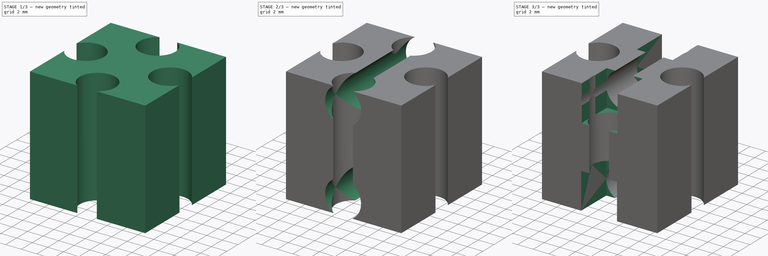
[diagram: build sequence overview — one tinted view per stage of 3, left to right]
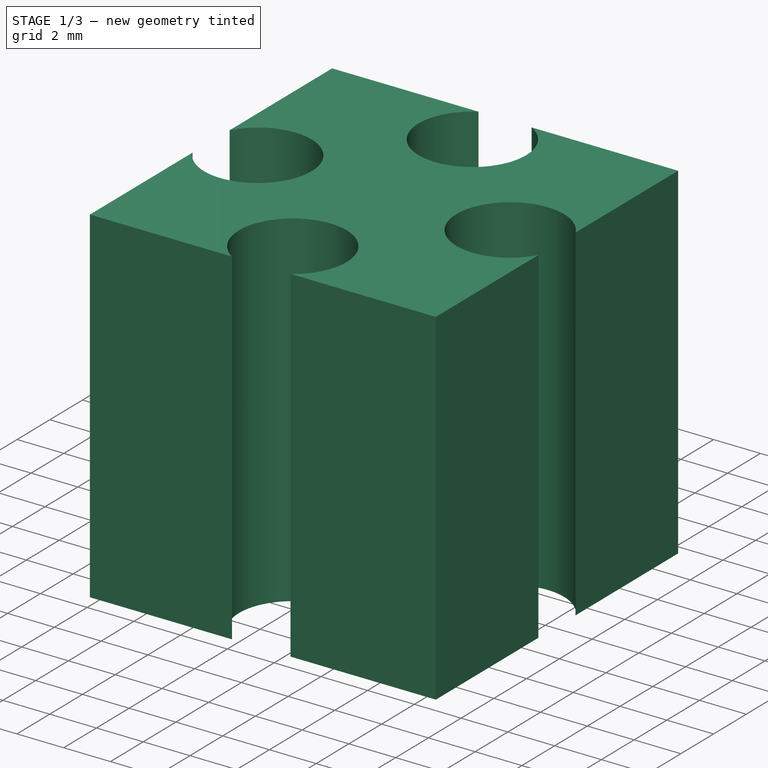
[diagram: stage 1 of 3 — iso view after this stage's code; geometry added in this stage tinted green]
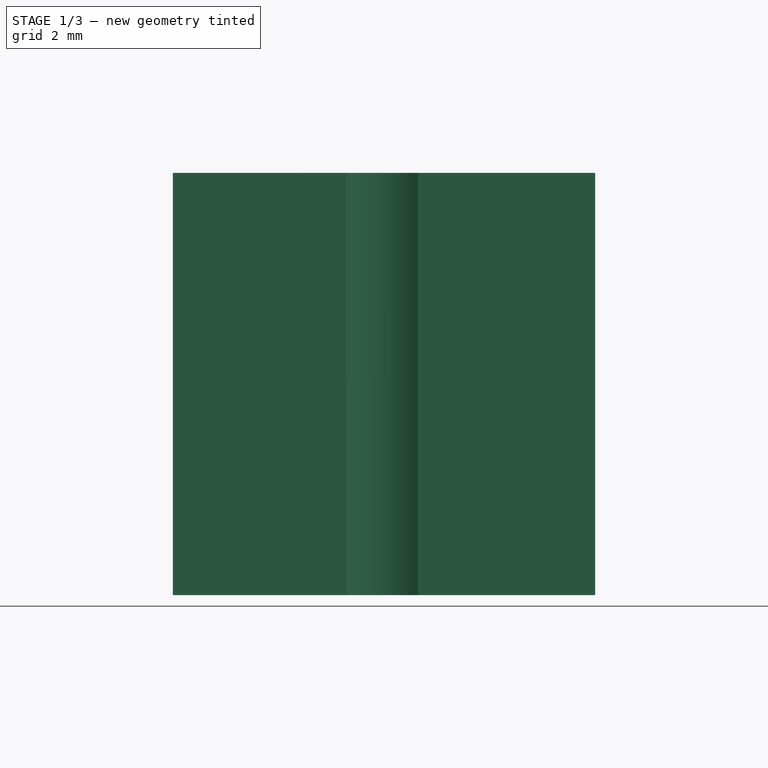
[diagram: stage 1 of 3 — front view after this stage's code; geometry added in this stage tinted green]
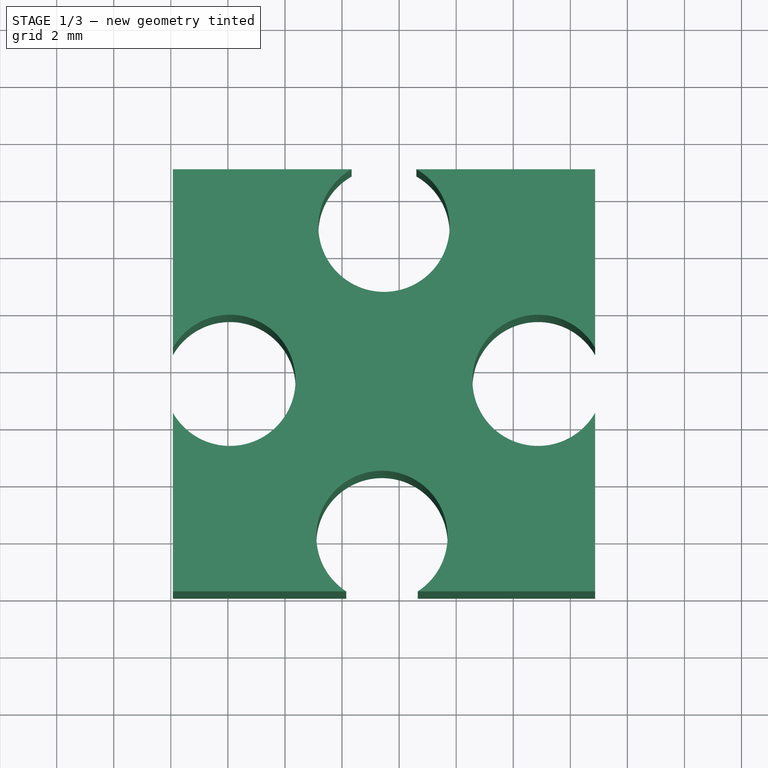
[diagram: stage 1 of 3 — top view after this stage's code; geometry added in this stage tinted green]
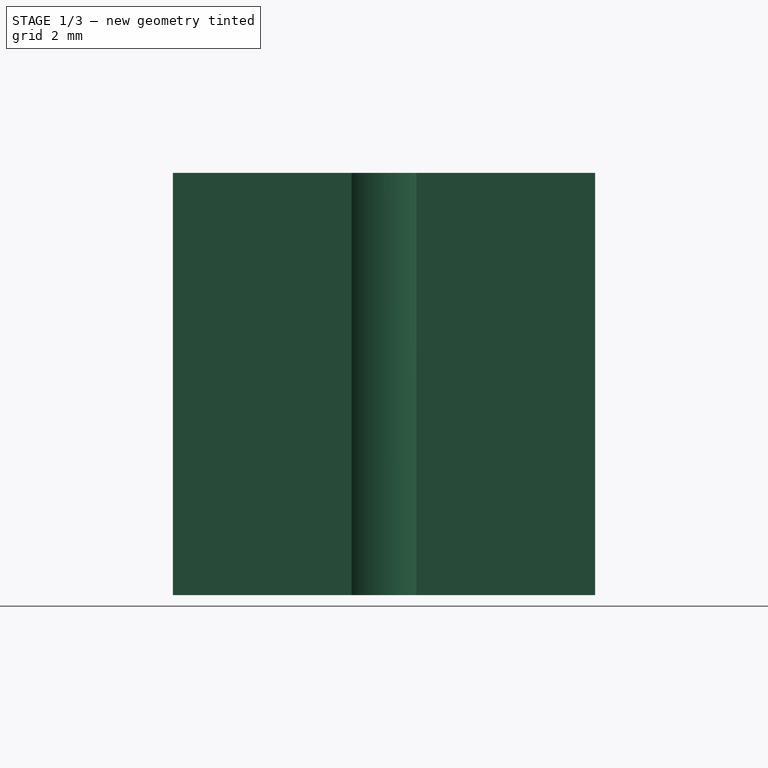
[diagram: stage 1 of 3 — right view after this stage's code; geometry added in this stage tinted green]
FCSTD DOCUMENT  (FreeCAD 1.0R38641 +678 (Git))
Label: FischertechnikBlockSmall
License: All rights reserved
LicenseURL: https://en.wikipedia.org/wiki/All_rights_reserved
objects: Sketcher::SketchObject×5, PartDesign::Pocket×4, Spreadsheet::Sheet×1, PartDesign::Pad×1, PartDesign::Body×1
note: 26 computed .brp shape members not serialized (recipe doc carries the construction recipe); baked Part::Feature solids carry a one-line shape summary decoded from their .brp

FEATURE [Sketcher::SketchObject] Sketch
  ArcFitTolerance = 1e-06
  AttachmentSupport = -> [XY_Plane]
  FullyConstrained = false
  MakeInternals = false
  MapMode = 5
  expr: Constraints[8] = Spreadsheet.Block_width
  expr: Constraints[9] = Spreadsheet.Block_width
  sketch-geometry (4):
    g0: LineSegment StartX=0.0707107 StartY=0.0707107 StartZ=0 EndX=14.8707 EndY=0.0707107 EndZ=0
    g1: LineSegment StartX=14.8707 StartY=0.0707107 StartZ=0 EndX=14.8707 EndY=14.8707 EndZ=0
    g2: LineSegment StartX=14.8707 StartY=14.8707 StartZ=0 EndX=0.0707107 EndY=14.8707 EndZ=0
    g3: LineSegment StartX=0.0707107 StartY=14.8707 StartZ=0 EndX=0.0707107 EndY=0.0707107 EndZ=0
  constraints (10):
    c: Coincident(g0,g1)
    c: Coincident(g1,g2)
    c: Coincident(g2,g3)
    c: Coincident(g3,g0)
    c: Horizontal(g0)
    c: Horizontal(g2)
    c: Vertical(g1)
    c: Vertical(g3)
    c: DistanceX(g0,g0) = 14.8
    c: DistanceY(g1,g1) = 14.8
FEATURE [Spreadsheet::Sheet] Spreadsheet
  cells = A1='Block_Width; B1(Block_width)=14.8; A2='Block_Height; B2(Block_Height)=14.8; A3='Channel_Diameter; B3(Channel_Diameter)=4.6; A4='Channel_Offset; B4(Channel_Offset)=2
FEATURE [PartDesign::Pad] Pad
  Direction = (0,0,1)
  Length = 14.8
  Length2 = 10
  Profile = -> Sketch
  ReferenceAxis = -> Sketch [N_Axis]
  Refine = true
  Suppressed = false
  Type = 0
  expr: Length = Spreadsheet.Block_Height
FEATURE [Sketcher::SketchObject] Sketch001
  ArcFitTolerance = 1e-06
  AttachmentSupport = -> [Pad]
  ExternalGeometry = -> [Pad]
  FullyConstrained = true
  MakeInternals = false
  MapMode = 5
  Placement = pos=(0,0,14.8) rot=(0,0,1;0rad)
  expr: Constraints[0] = Spreadsheet.Channel_Diameter
  expr: Constraints[10] = Spreadsheet.Channel_Offset
  expr: Constraints[11] = Spreadsheet.Block_width / 2
  expr: Constraints[1] = Spreadsheet.Channel_Offset
  expr: Constraints[2] = Spreadsheet.Block_width / 2
  expr: Constraints[3] = Spreadsheet.Channel_Diameter
  expr: Constraints[4] = Spreadsheet.Channel_Offset
  expr: Constraints[5] = Spreadsheet.Block_width / 2
  expr: Constraints[6] = Spreadsheet.Channel_Diameter
  expr: Constraints[7] = Spreadsheet.Channel_Offset
  expr: Constraints[8] = Spreadsheet.Block_width / 2
  expr: Constraints[9] = Spreadsheet.Channel_Diameter
  sketch-geometry (4):
    g0: Circle CenterX=7.4 CenterY=2 CenterZ=0 NormalX=0 NormalY=0 NormalZ=1 AngleXU=0 Radius=2.3
    g1: Circle CenterX=2.07071 CenterY=7.47071 CenterZ=0 NormalX=0 NormalY=0 NormalZ=1 AngleXU=0 Radius=2.3
    g2: Circle CenterX=7.47071 CenterY=12.8707 CenterZ=0 NormalX=0 NormalY=0 NormalZ=1 AngleXU=0 Radius=2.3
    g3: Circle CenterX=12.8707 CenterY=7.47071 CenterZ=0 NormalX=0 NormalY=0 NormalZ=1 AngleXU=0 Radius=2.3
  constraints (12):
    c: Diameter(g0) = 4.6
    c: DistanceY(g-1,g0) = 2
    c: DistanceX(g-1,g0) = 7.4
    c: Diameter(g1) = 4.6
    c: DistanceX(g-3,g1) = 2
    c: DistanceY(g1,g-3) = 7.4
    c: Diameter(g2) = 4.6
    c: DistanceY(g2,g-3) = 2
    c: DistanceX(g2,g-3) = 7.4
    c: Diameter(g3) = 4.6
    c: DistanceX(g3,g-4) = 2
    c: DistanceY(g-4,g3) = 7.4
FEATURE [PartDesign::Pocket] Pocket
  BaseFeature = -> Pad
  Direction = (0,0,-1)
  Length = 5
  Length2 = 5
  Profile = -> Sketch001
  ReferenceAxis = -> Sketch001 [N_Axis]
  Refine = true
  Suppressed = false
  Type = 1
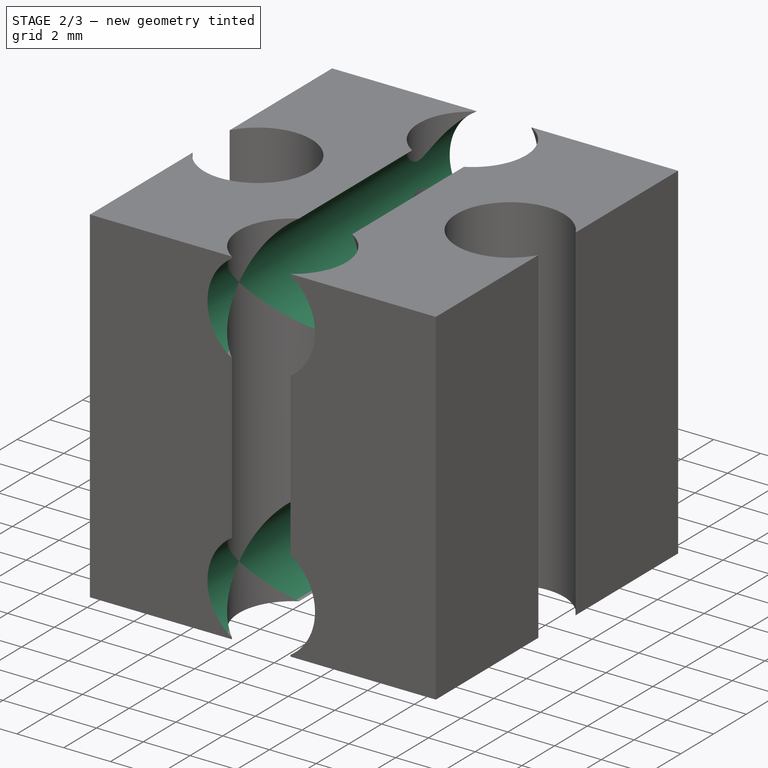
[diagram: stage 2 of 3 — iso view after this stage's code; geometry added in this stage tinted green]
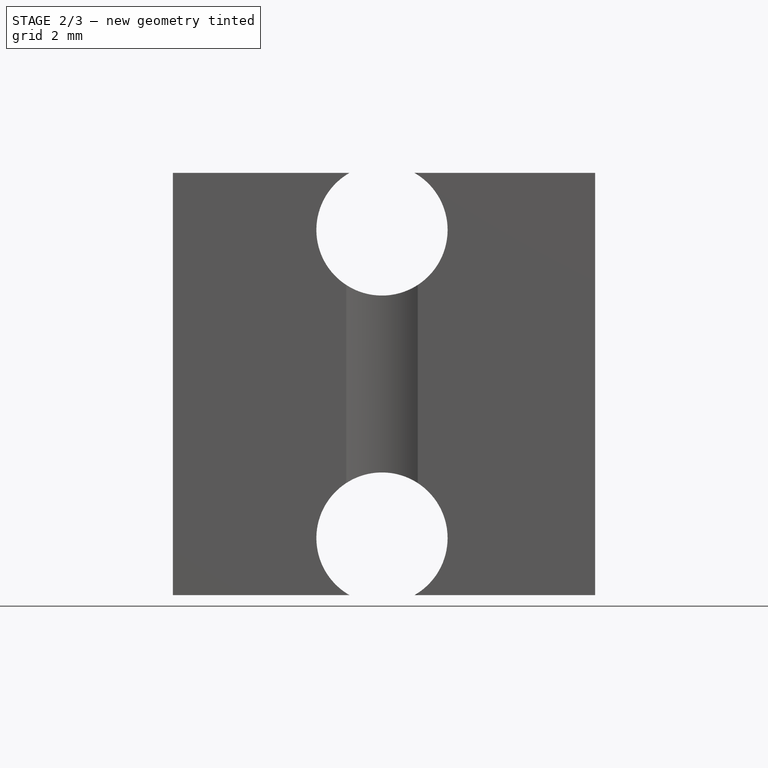
[diagram: stage 2 of 3 — front view after this stage's code; geometry added in this stage tinted green]
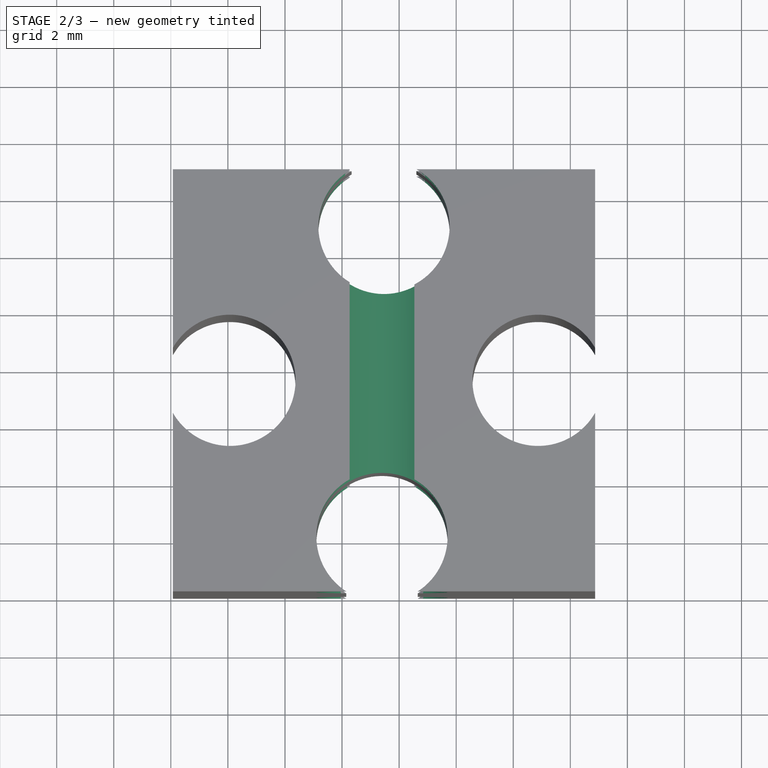
[diagram: stage 2 of 3 — top view after this stage's code; geometry added in this stage tinted green]
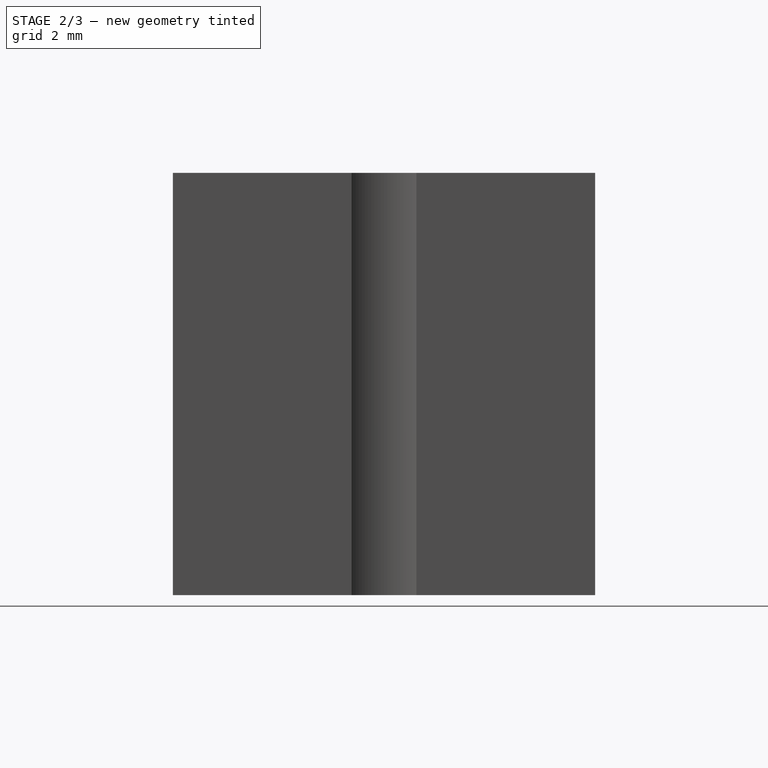
[diagram: stage 2 of 3 — right view after this stage's code; geometry added in this stage tinted green]
FEATURE [Sketcher::SketchObject] Sketch002
  ArcFitTolerance = 1e-06
  AttachmentSupport = -> [Pocket]
  ExternalGeometry = -> [Pocket]
  FullyConstrained = true
  MakeInternals = false
  MapMode = 5
  Placement = pos=(0,0.0707107,0) rot=(1,0,0;1.5708rad)
  expr: Constraints[0] = Spreadsheet.Block_width / 2
  expr: Constraints[1] = Spreadsheet.Channel_Offset
  expr: Constraints[2] = Spreadsheet.Channel_Offset
  expr: Constraints[3] = Spreadsheet.Channel_Diameter
  expr: Constraints[4] = Spreadsheet.Channel_Diameter
  sketch-geometry (2):
    g0: Circle CenterX=7.4 CenterY=12.8 CenterZ=0 NormalX=0 NormalY=0 NormalZ=1 AngleXU=0 Radius=2.3
    g1: Circle CenterX=7.4 CenterY=2 CenterZ=0 NormalX=0 NormalY=0 NormalZ=1 AngleXU=0 Radius=2.3
  constraints (6):
    c: DistanceX(g-1,g1) = 7.4
    c: DistanceY(g-1,g1) = 2
    c: DistanceY(g0,g-3) = 2
    c: Diameter(g0) = 4.6
    c: Diameter(g1) = 4.6
    c: DistanceX(g1,g0) = 0
FEATURE [PartDesign::Pocket] Pocket001
  BaseFeature = -> Pocket
  Direction = (0,1,-2e-16)
  Length = 5
  Length2 = 5
  Profile = -> Sketch002
  ReferenceAxis = -> Sketch002 [N_Axis]
  Refine = true
  Suppressed = false
  Type = 1
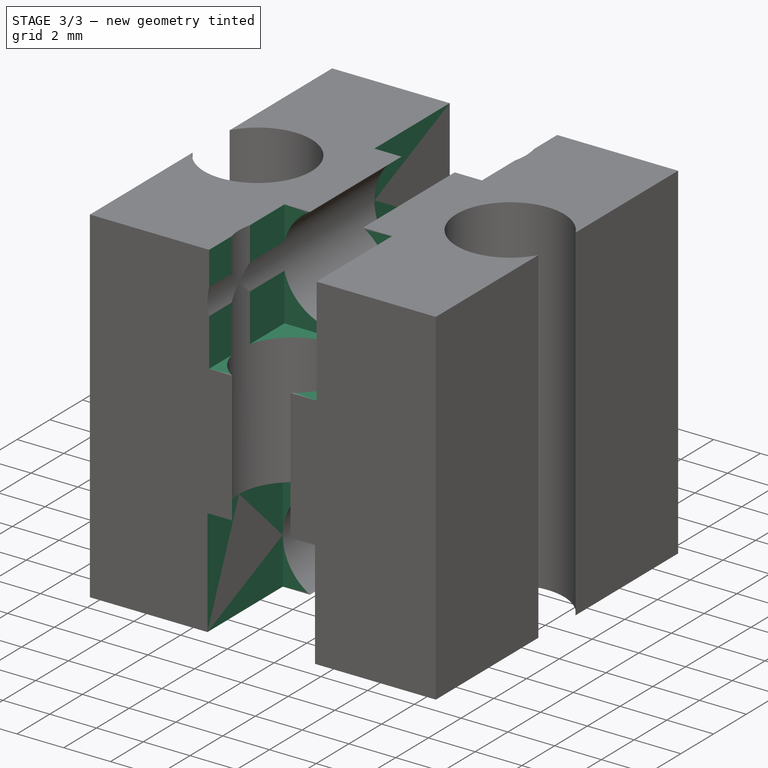
[diagram: stage 3 of 3 — iso view after this stage's code; geometry added in this stage tinted green]
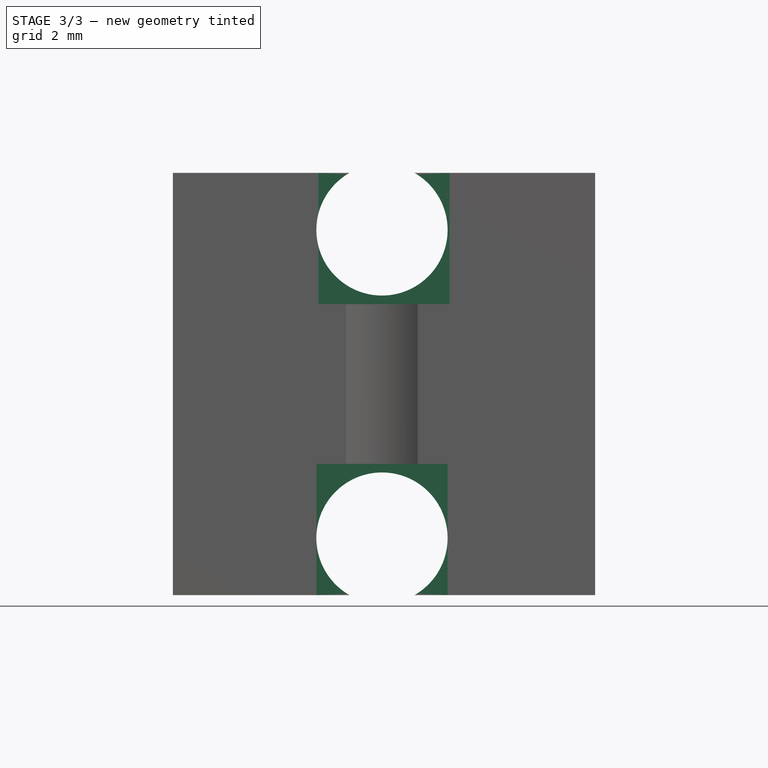
[diagram: stage 3 of 3 — front view after this stage's code; geometry added in this stage tinted green]
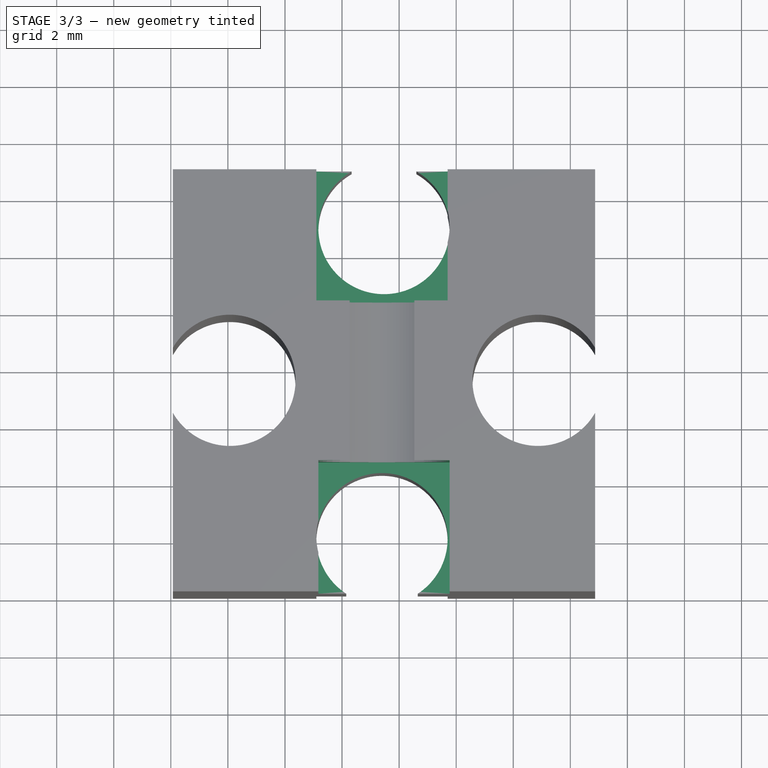
[diagram: stage 3 of 3 — top view after this stage's code; geometry added in this stage tinted green]
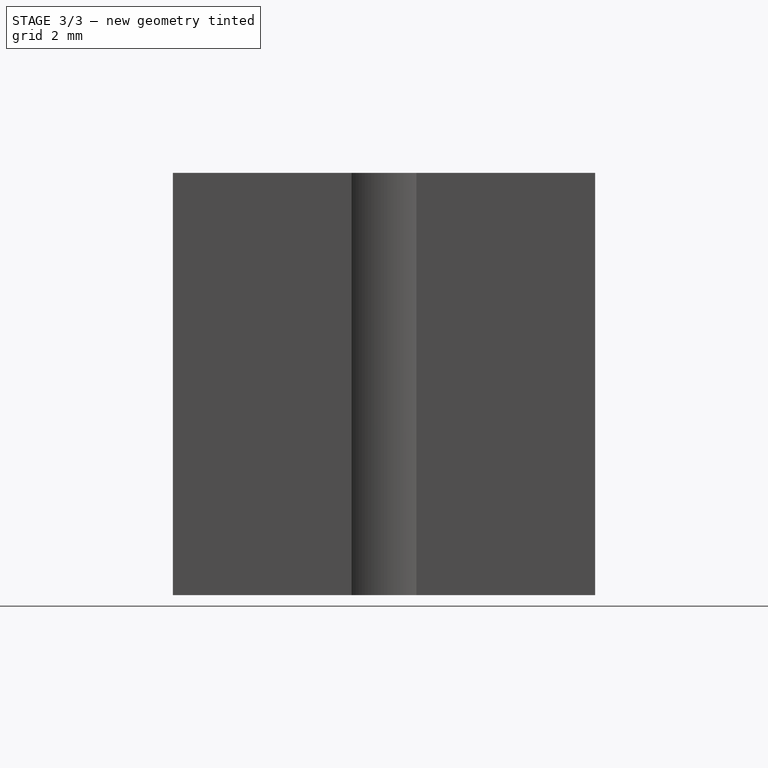
[diagram: stage 3 of 3 — right view after this stage's code; geometry added in this stage tinted green]
FEATURE [Sketcher::SketchObject] Sketch003
  ArcFitTolerance = 1e-06
  AttachmentSupport = -> [Pocket001]
  ExternalGeometry = -> [Pocket001]
  FullyConstrained = true
  MakeInternals = false
  MapMode = 5
  Placement = pos=(0,0.0707107,0) rot=(1,0,0;1.5708rad)
  expr: Constraints[16] = Spreadsheet.Channel_Diameter
  expr: Constraints[17] = Spreadsheet.Channel_Diameter
  expr: Constraints[19] = Spreadsheet.Block_width / 2 - Spreadsheet.Channel_Diameter / 2
  expr: Constraints[21] = Spreadsheet.Channel_Diameter
  expr: Constraints[22] = Spreadsheet.Channel_Diameter
  expr: Constraints[23] = Spreadsheet.Block_width / 2 - Spreadsheet.Channel_Diameter / 2
  sketch-geometry (8):
    g0: LineSegment StartX=9.77071 StartY=10.2 StartZ=0 EndX=9.77071 EndY=14.8 EndZ=0
    g1: LineSegment StartX=9.77071 StartY=14.8 StartZ=0 EndX=5.17071 EndY=14.8 EndZ=0
    g2: LineSegment StartX=5.17071 StartY=14.8 StartZ=0 EndX=5.17071 EndY=10.2 EndZ=0
    g3: LineSegment StartX=5.17071 StartY=10.2 StartZ=0 EndX=9.77071 EndY=10.2 EndZ=0
    g4: LineSegment StartX=5.1 StartY=4.6 StartZ=0 EndX=5.1 EndY=0 EndZ=0
    g5: LineSegment StartX=5.1 StartY=0 StartZ=0 EndX=9.7 EndY=0 EndZ=0
    g6: LineSegment StartX=9.7 StartY=0 StartZ=0 EndX=9.7 EndY=4.6 EndZ=0
    g7: LineSegment StartX=9.7 StartY=4.6 StartZ=0 EndX=5.1 EndY=4.6 EndZ=0
  constraints (24):
    c: Coincident(g0,g1)
    c: Coincident(g1,g2)
    c: Coincident(g2,g3)
    c: Coincident(g3,g0)
    c: Vertical(g0)
    c: Vertical(g2)
    c: Horizontal(g1)
    c: Horizontal(g3)
    c: Coincident(g4,g5)
    c: Coincident(g5,g6)
    c: Coincident(g6,g7)
    c: Coincident(g7,g4)
    c: Vertical(g4)
    c: Vertical(g6)
    c: Horizontal(g5)
    c: Horizontal(g7)
    c: DistanceY(g6,g6) = 4.6
    c: DistanceX(g7,g7) = 4.6
    c: DistanceY(g-4,g5) = 0
    c: DistanceX(g-1,g4) = 5.1
    c: DistanceY(g0,g-3) = 0
    c: DistanceY(g0,g0) = 4.6
    c: DistanceX(g3,g3) = 4.6
    c: DistanceX(g-5,g1) = 5.1
FEATURE [PartDesign::Pocket] Pocket002
  BaseFeature = -> Pocket001
  Direction = (0,1,-2e-16)
  Length = 4.6
  Length2 = 5
  Profile = -> Sketch003
  ReferenceAxis = -> Sketch003 [N_Axis]
  Refine = true
  Suppressed = false
  Type = 0
  expr: Length = Spreadsheet.Channel_Diameter
FEATURE [Sketcher::SketchObject] Sketch004
  ArcFitTolerance = 1e-06
  AttachmentSupport = -> [Pocket002]
  ExternalGeometry = -> [Pocket002]
  FullyConstrained = true
  MakeInternals = false
  MapMode = 5
  Placement = pos=(0,14.8707,0) rot=(0,0.707107,0.707107;3.14159rad)
  expr: Constraints[16] = Spreadsheet.Channel_Diameter
  expr: Constraints[17] = Spreadsheet.Channel_Diameter
  expr: Constraints[18] = Spreadsheet.Channel_Diameter
  expr: Constraints[19] = Spreadsheet.Channel_Diameter
  expr: Constraints[23] = Spreadsheet.Block_width / 2 - Spreadsheet.Channel_Diameter / 2
  sketch-geometry (8):
    g0: LineSegment StartX=-9.7 StartY=14.8 StartZ=0 EndX=-9.7 EndY=10.2 EndZ=0
    g1: LineSegment StartX=-9.7 StartY=10.2 StartZ=0 EndX=-5.1 EndY=10.2 EndZ=0
    g2: LineSegment StartX=-5.1 StartY=10.2 StartZ=0 EndX=-5.1 EndY=14.8 EndZ=0
    g3: LineSegment StartX=-5.1 StartY=14.8 StartZ=0 EndX=-9.7 EndY=14.8 EndZ=0
    g4: LineSegment StartX=-9.7 StartY=4.6 StartZ=0 EndX=-9.7 EndY=0 EndZ=0
    g5: LineSegment StartX=-9.7 StartY=0 StartZ=0 EndX=-5.1 EndY=0 EndZ=0
    g6: LineSegment StartX=-5.1 StartY=0 StartZ=0 EndX=-5.1 EndY=4.6 EndZ=0
    g7: LineSegment StartX=-5.1 StartY=4.6 StartZ=0 EndX=-9.7 EndY=4.6 EndZ=0
  constraints (24):
    c: Coincident(g0,g1)
    c: Coincident(g1,g2)
    c: Coincident(g2,g3)
    c: Coincident(g3,g0)
    c: Vertical(g0)
    c: Vertical(g2)
    c: Horizontal(g1)
    c: Horizontal(g3)
    c: Coincident(g4,g5)
    c: Coincident(g5,g6)
    c: Coincident(g6,g7)
    c: Coincident(g7,g4)
    c: Vertical(g4)
    c: Vertical(g6)
    c: Horizontal(g5)
    c: Horizontal(g7)
    c: DistanceY(g6,g6) = 4.6
    c: DistanceX(g5,g5) = 4.6
    c: DistanceX(g3,g3) = 4.6
    c: DistanceY(g0,g0) = 4.6
    c: DistanceY(g2,g-3) = 0
    c: DistanceY(g-1,g5) = 0
    c: DistanceX(g0,g4) = 0
    c: DistanceX(g5,g-1) = 5.1
FEATURE [PartDesign::Pocket] Pocket003
  BaseFeature = -> Pocket002
  Direction = (0,-1,2e-16)
  Length = 4.6
  Length2 = 5
  Profile = -> Sketch004
  ReferenceAxis = -> Sketch004 [N_Axis]
  Refine = true
  Suppressed = false
  Type = 0
  expr: Length = Spreadsheet.Channel_Diameter
FEATURE [PartDesign::Body] Body
  AllowCompound = false
  Group = -> [Sketch,Pad,Sketch001,Pocket,Sketch002,Pocket001,Sketch003,Pocket002,Sketch004,Pocket003]
  Origin = -> Origin
  Tip = -> Pocket003
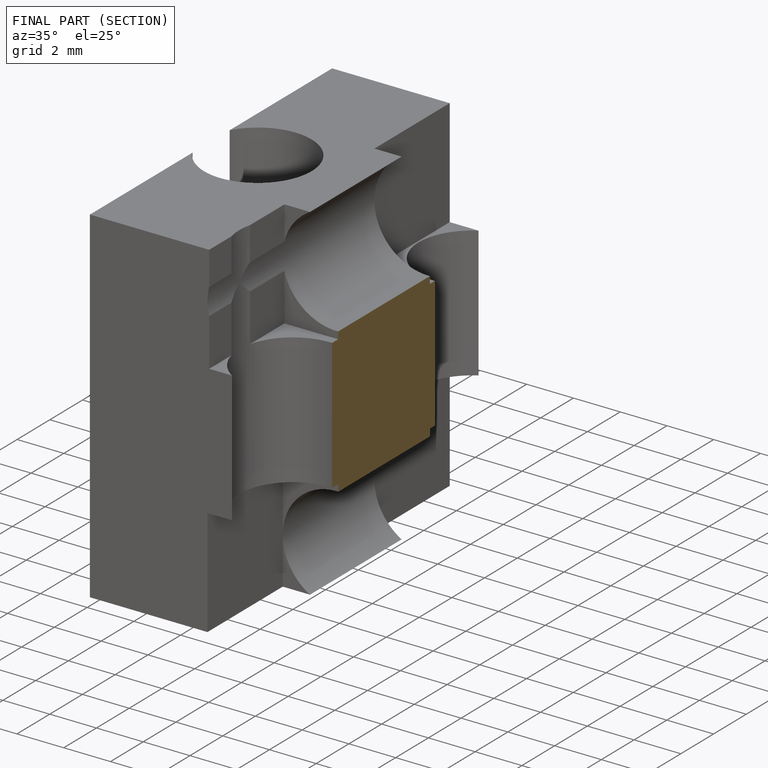
[diagram: finished part — half-section view (interior)]
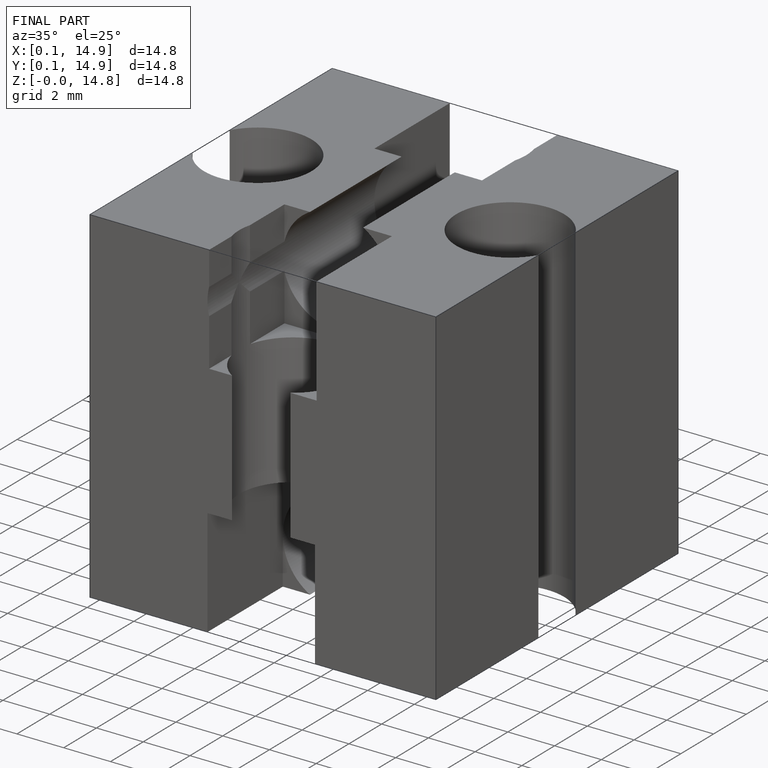
[diagram: finished part — iso view with bounding-box wireframe]
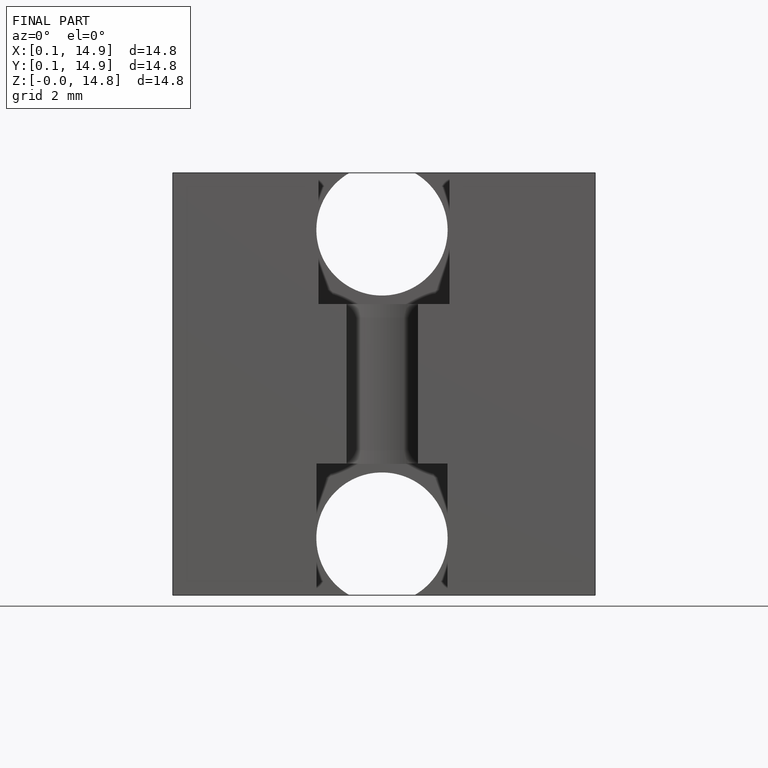
[diagram: finished part — front view with bounding-box wireframe]
